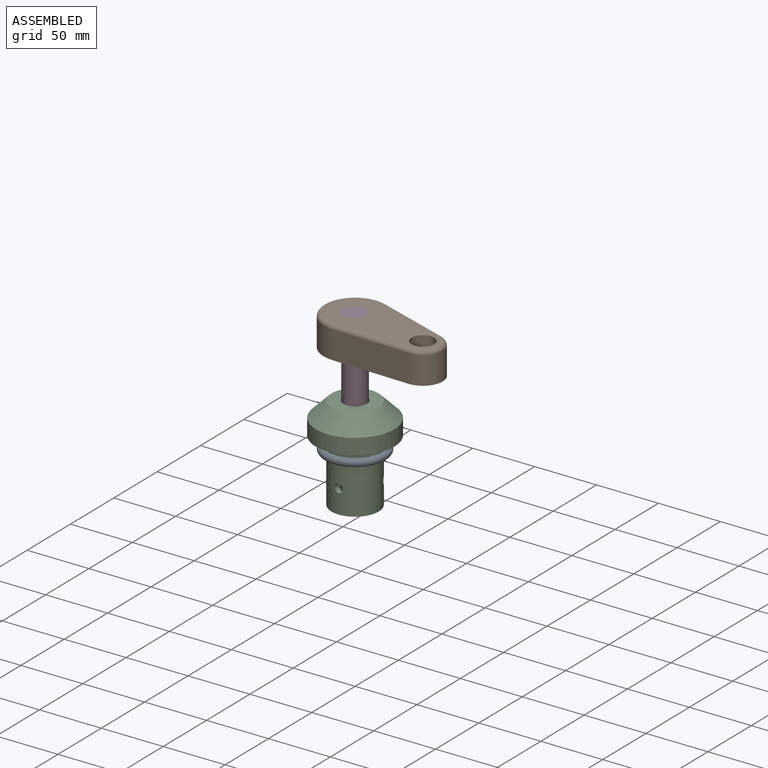
[diagram: assembled view]
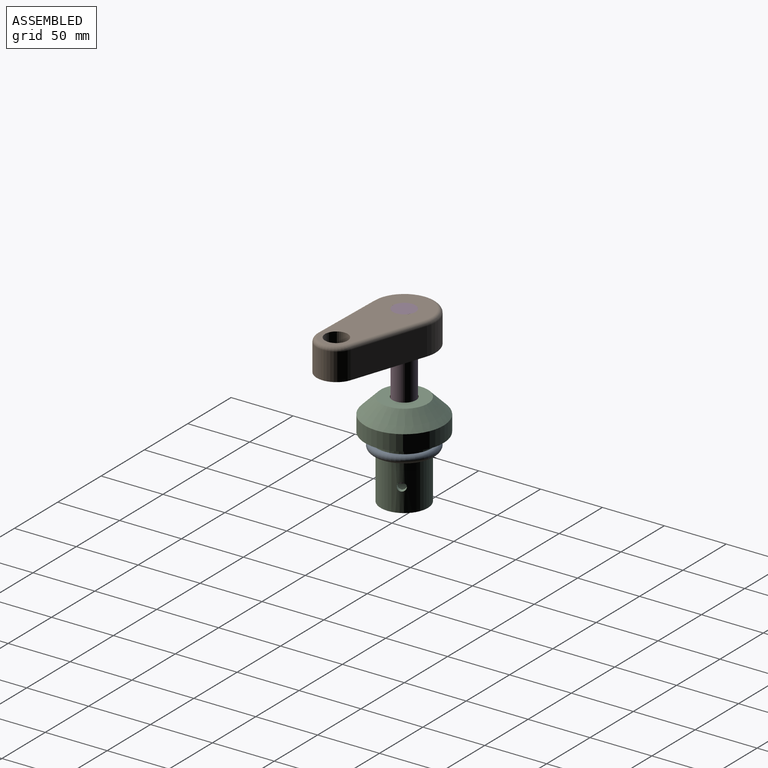
[diagram: assembled view, second angle]
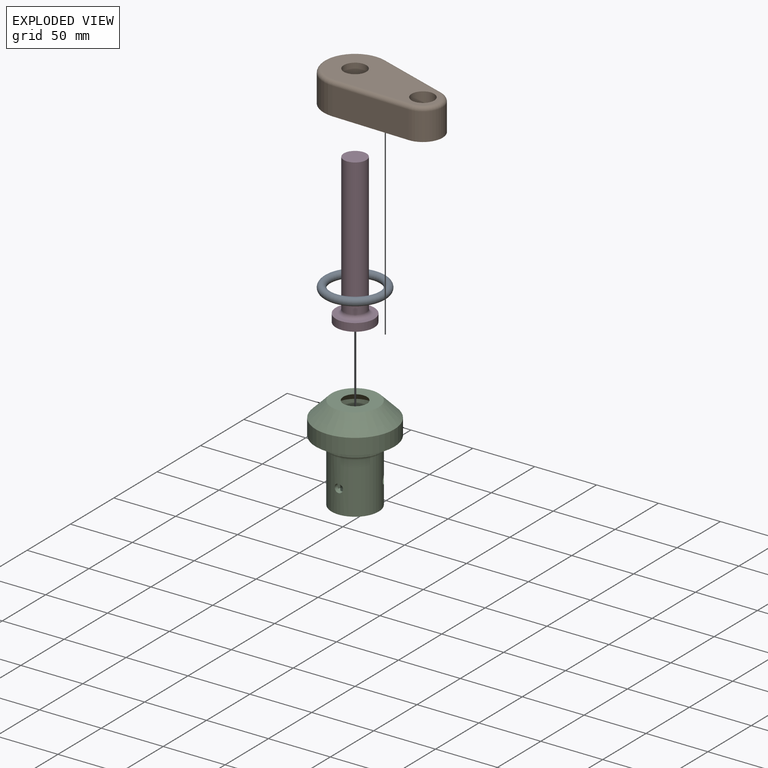
[diagram: exploded view]
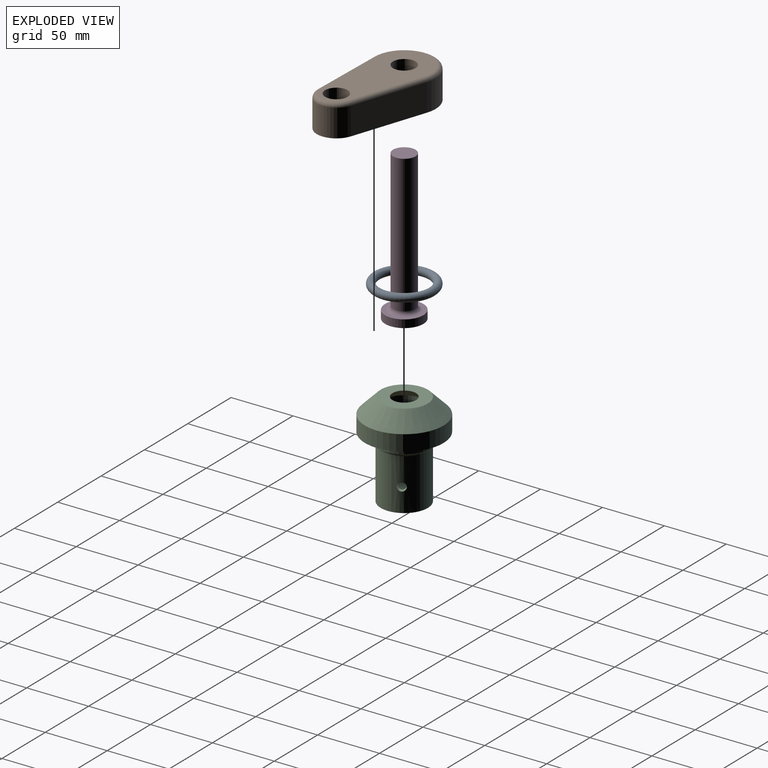
[diagram: exploded view, second angle]
ASSEMBLY  parts=4 mates=3
PART A: 1 faces, bbox 55x55x6.4 mm
  f0: torus R=22.23mm, axis (0,0,1), area 2785.8mm2
PART B: 12 faces, bbox 108.2x55x25.4 mm
  f0: cylinder r=25.4mm len=50.8mm, axis (0,0,1), area 1943.5mm2, adj f1,f3,f6,f9
  f1: plane 62.07x22.23mm, normal (0.15,-0.99,0), area 1395.3mm2, adj f0,f2,f6,f11
  f2: cylinder r=15.88mm len=31.39mm, axis (0,0,1), area 1002.2mm2, adj f1,f3,f6,f10
  f3: plane 62.07x22.23mm, normal (0.15,0.99,0), area 1395.3mm2, adj f0,f2,f6,f8
  f4: cylinder r=9.13mm len=25.4mm, axis (0,0,1), area 1456.8mm2, adj f6,f7
  f5: cylinder r=9.13mm len=25.4mm, axis (0,0,1), area 1456.8mm2, adj f6,f7
  f6: plane 104.78x50.8mm, normal (0,0,-1), area 3536.3mm2, adj f0,f1,f2,f3,f4,f5
  f7: plane 98.43x44.45mm, normal (0,0,1), area 2748.5mm2, adj f4,f5,f8,f9,f10,f11
  f8: cylinder r=3.17mm len=62.55mm, axis (-0.99,0.15,0), area 313.1mm2, adj f3,f7,f9,f10
  f9: torus R=22.23mm, axis (0,0,1), area 416.3mm2, adj f0,f7,f8,f11
  f10: torus R=12.7mm, axis (0,0,1), area 208.5mm2, adj f2,f7,f8,f11
  f11: cylinder r=3.17mm len=62.55mm, axis (0.99,0.15,0), area 313.1mm2, adj f1,f7,f9,f10
PART C: 15 faces, bbox 63.5x63.5x76.2 mm
  f0: cylinder r=15.88mm len=63.5mm, axis (0,0,1), area 6225.3mm2, adj f2,f9,f10,f11,f12
  f1: cylinder r=19.05mm len=41.28mm, axis (0,0,1), area 4832mm2, adj f3,f10,f11,f12,f13
  f2: plane 31.75x31.75mm, normal (0,0,1), area 791.7mm2, adj f0
  f3: plane 38.1x38.1mm, normal (0,0,-1), area 1140.1mm2, adj f1
  f4: cylinder r=22.23mm len=44.45mm, axis (0,0,1), area 443.4mm2, adj f13,f14
  f5: plane 63.5x63.5mm, normal (0,0,-1), area 1140.1mm2, adj f6,f14
  f6: cylinder r=31.75mm len=63.5mm, axis (0,0,1), area 2533.5mm2, adj f5,f7
  f7: cone r=19.05mm half-angle=45deg, axis (0,0,-1), area 2866.4mm2, adj f6,f8
  f8: plane 38.1x38.1mm, normal (0,0,1), area 855.1mm2, adj f7,f9
  f9: cone r=9.53mm half-angle=45deg, axis (0,0,-1), area 716.6mm2, adj f0,f8
  f10: cylinder r=3.38mm len=6.76mm, axis (0,1,0), area 68mm2, adj f0,f1
  f11: cylinder r=3.38mm len=7.62mm, axis (-0.87,-0.5,0), area 68mm2, adj f0,f1
  f12: cylinder r=3.38mm len=7.62mm, axis (0.87,-0.5,0), area 68mm2, adj f0,f1
  f13: torus R=22.23mm, axis (0,0,-1), area 633.1mm2, adj f1,f4
  f14: torus R=25.4mm, axis (0,0,-1), area 732.6mm2, adj f4,f5
PART D: 6 faces, bbox 31x31x120.7 mm
  f0: plane 30.96x30.96mm, normal (0,0,-1), area 752.6mm2, adj f1
  f1: cylinder r=15.48mm len=30.96mm, axis (0,0,-1), area 617.5mm2, adj f0,f2
  f2: plane 30.96x30.96mm, normal (0,0,1), area 277.1mm2, adj f1,f5
  f3: cylinder r=9.13mm len=111.13mm, axis (0,0,-1), area 6373.4mm2, adj f4,f5
  f4: plane 18.26x18.26mm, normal (0,0,1), area 261.8mm2, adj f3
  f5: torus R=12.3mm, axis (0,0,-1), area 322.2mm2, adj f2,f3
PLACE A t=(0,0,41.28)mm
PLACE B rot(axis=(0,0,-1),10deg) t=(0,0,13.46)mm
PLACE C at identity fixed
PLACE D rot(axis=(0,0,1),80deg) t=(0,0,13.46)mm
MATE fastened D.f1 <-> B.f0  axis (0,0,1) through (0,0,140.46)mm
MATE cylindrical D.f1 <-> C.f0  axis (0,0,-1) through (0,0,19.81)mm
MATE fastened A.f0 <-> C.f0  axis (0,0,1) through (0,0,41.28)mm
